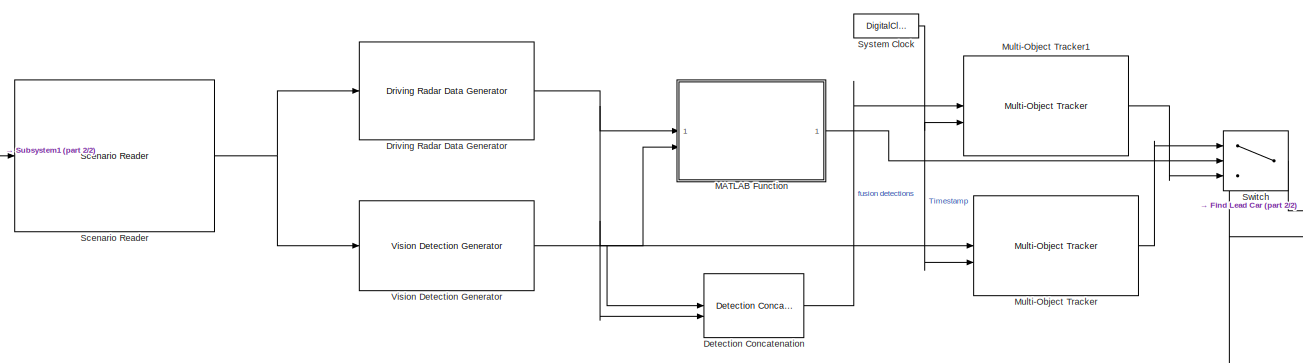
[diagram: root canvas - part 1/2, central region]
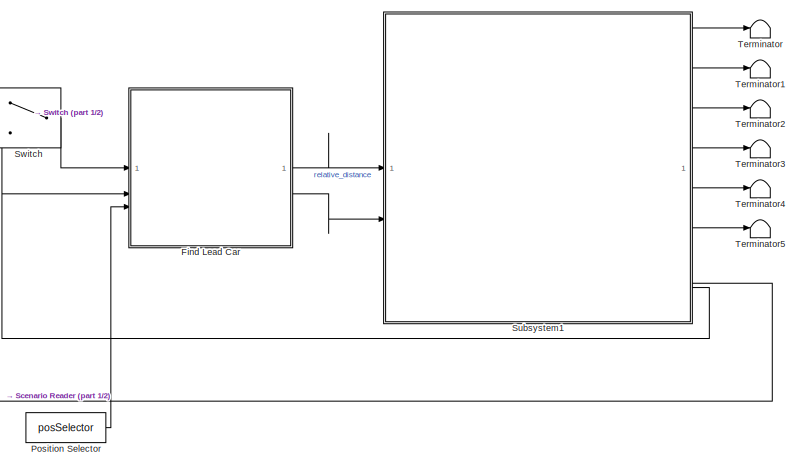
[diagram: root canvas - part 2/2, right side, full height]
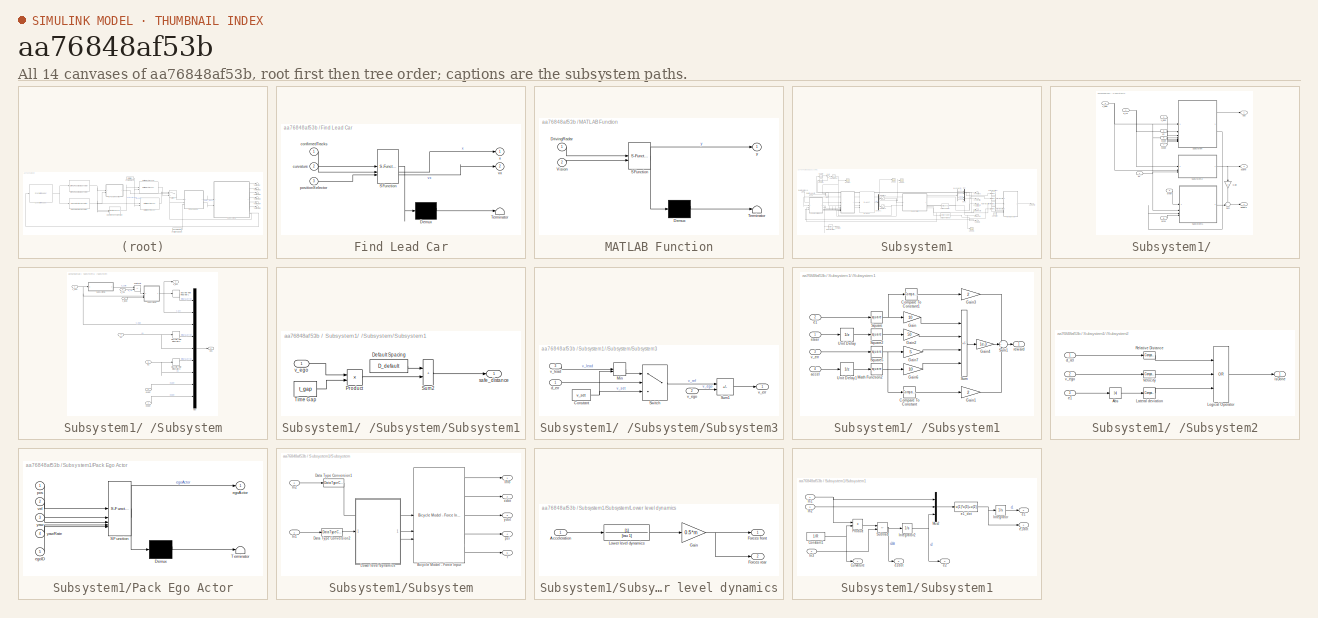
[diagram: thumbnail index - all 14 canvases of the model, root first then tree order]
MODEL slx_aa76848af53b
KIND model
CONFIG AbsTol = auto
CONFIG EnableMultiTasking = off
CONFIG FixedStep = 0.1
CONFIG MaxStep = auto
CONFIG MinStep = auto
CONFIG PostLoadFcn = RL_fault_tolerance_Setup
CONFIG RelTol = 1e-3
CONFIG SampleTimeConstraint = Unconstrained
CONFIG SolverName = FixedStepAuto
CONFIG StartTime = 0.0
CONFIG StopTime = 500
BLOCK [Reference] Detection Concatenation  REF=trackingutilitieslib/Detection Concatenation
  SourceBlock = trackingutilitieslib/Detection Concatenation
  SourceType = matlabshared.tracking.internal.DetectionConcatenation
BLOCK [Reference] Driving Radar Data Generator  REF=drivingscenarioandsensors/Driving Radar Data Generator
  SourceBlock = drivingscenarioandsensors/Driving Radar Data Generator
  SourceType = drivingRadarDataGenerator
BLOCK [SubSystem] Find Lead Car
  ErrorFcn = Stateflow.Translate.translate
  PermitHierarchicalResolution = ExplicitOnly
  SFBlockType = MATLAB Function
  TreatAsAtomicUnit = on
BLOCK [Demux] Find Lead Car/ Demux 
  Outputs = 1
BLOCK [S-Function] Find Lead Car/ SFunction 
  EnableBusSupport = on
  FunctionName = sf_sfun
  PortCounts = [3 3]
  SFcnIsStateOwnerBlock = off
  SFunctionDeploymentMode = off
  Tag = Stateflow S-Function 3
BLOCK [Terminator] Find Lead Car/ Terminator 
BLOCK [Inport] Find Lead Car/confirmedTracks
BLOCK [Inport] Find Lead Car/curvature
  Port = 2
BLOCK [Inport] Find Lead Car/positionSelector
  Port = 3
BLOCK [Outport] Find Lead Car/vx
  Port = 2
  VectorParamsAs1DForOutWhenUnconnected = off
BLOCK [Outport] Find Lead Car/x
  VectorParamsAs1DForOutWhenUnconnected = off
BLOCK [SubSystem] MATLAB Function
  ErrorFcn = Stateflow.Translate.translate
  PermitHierarchicalResolution = ExplicitOnly
  SFBlockType = MATLAB Function
  TreatAsAtomicUnit = on
BLOCK [Demux] MATLAB Function/ Demux 
  Outputs = 1
BLOCK [S-Function] MATLAB Function/ SFunction 
  EnableBusSupport = on
  FunctionName = sf_sfun
  PortCounts = [2 2]
  SFcnIsStateOwnerBlock = off
  SFunctionDeploymentMode = off
  Tag = Stateflow S-Function 2
BLOCK [Terminator] MATLAB Function/ Terminator 
BLOCK [Inport] MATLAB Function/DrivingRadar
BLOCK [Inport] MATLAB Function/Vision
  Port = 2
BLOCK [Outport] MATLAB Function/y
BLOCK [Reference] Multi-Object Tracker  REF=drivinglib/Multi-Object Tracker
  SourceBlock = drivinglib/Multi-Object Tracker
  SourceType = multiObjectTracker
BLOCK [Reference] Multi-Object Tracker1  REF=drivinglib/Multi-Object Tracker
  SourceBlock = drivinglib/Multi-Object Tracker
  SourceType = multiObjectTracker
BLOCK [Constant] Position Selector
  Value = posSelector
BLOCK [Reference] Scenario Reader  REF=drivingscenarioandsensors/Scenario Reader
  SourceBlock = drivingscenarioandsensors/Scenario Reader
  SourceType = driving.scenario.internal.ScenarioReader
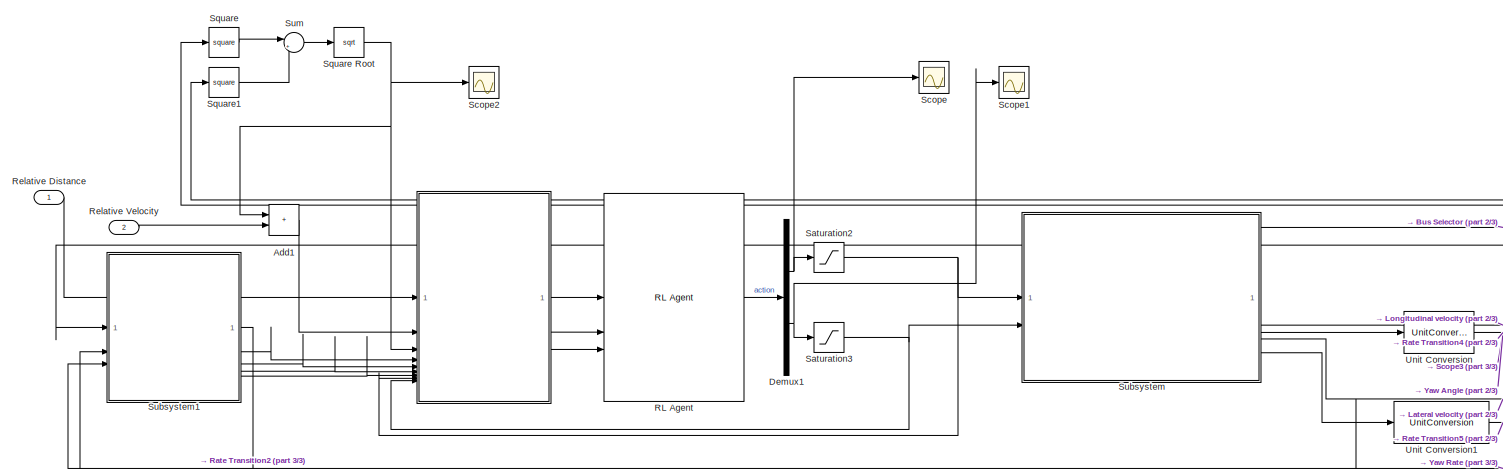
[diagram: Subsystem1 - part 1/3, middle left region]
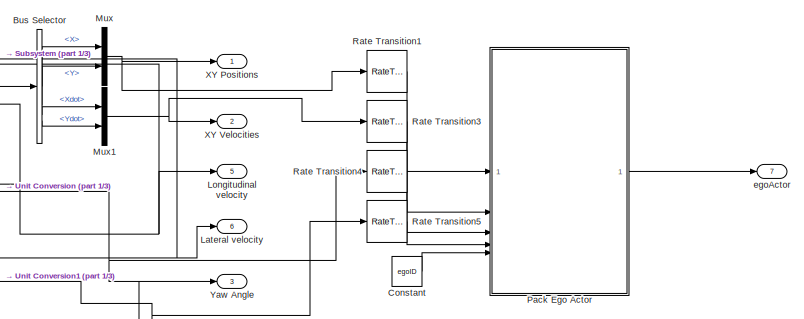
[diagram: Subsystem1 - part 2/3, middle right region]
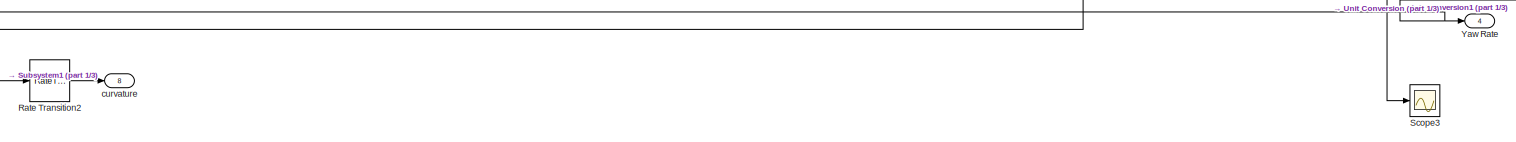
[diagram: Subsystem1 - part 3/3, bottom center region]
BLOCK [SubSystem] Subsystem1
BLOCK [SubSystem] Subsystem1/ 
BLOCK [Gain] Subsystem1/ /Gain
  Gain = 3
  NameLocation = left
BLOCK [Outport] Subsystem1/ /Reward
  Port = 2
  VectorParamsAs1DForOutWhenUnconnected = off
BLOCK [SubSystem] Subsystem1/ /Subsystem
BLOCK [DiscreteIntegrator] Subsystem1/ /Subsystem/Discrete-Time Integrator1
  ICPrevOutput = DiscIntNeverNeededParam
  ICPrevScaledInput = DiscIntNeverNeededParam
  InitialConditionSetting = Auto
  SampleTime = -1
BLOCK [DiscreteIntegrator] Subsystem1/ /Subsystem/Discrete-Time Integrator2
  ICPrevOutput = DiscIntNeverNeededParam
  ICPrevScaledInput = DiscIntNeverNeededParam
  InitialConditionSetting = Auto
  SampleTime = -1
BLOCK [DiscreteIntegrator] Subsystem1/ /Subsystem/Discrete-Time Integrator3
  ICPrevOutput = DiscIntNeverNeededParam
  ICPrevScaledInput = DiscIntNeverNeededParam
  InitialConditionSetting = Auto
  SampleTime = -1
BLOCK [Mux] Subsystem1/ /Subsystem/Mux
  DisplayOption = bar
  Inputs = 9
BLOCK [SubSystem] Subsystem1/ /Subsystem/Subsystem1
BLOCK [Constant] Subsystem1/ /Subsystem/Subsystem1/Default Spacing
  SampleTime = Ts
  Value = D_default
BLOCK [Product] Subsystem1/ /Subsystem/Subsystem1/Product
BLOCK [Sum] Subsystem1/ /Subsystem/Subsystem1/Sum2
  IconShape = rectangular
BLOCK [Constant] Subsystem1/ /Subsystem/Subsystem1/Time Gap
  SampleTime = Ts
  Value = t_gap
BLOCK [Outport] Subsystem1/ /Subsystem/Subsystem1/safe_distance
  VectorParamsAs1DForOutWhenUnconnected = off
BLOCK [Inport] Subsystem1/ /Subsystem/Subsystem1/v_ego
BLOCK [SubSystem] Subsystem1/ /Subsystem/Subsystem3
BLOCK [Constant] Subsystem1/ /Subsystem/Subsystem3/Constant
  Value = v_set
BLOCK [MinMax] Subsystem1/ /Subsystem/Subsystem3/Min
  Inputs = 2
BLOCK [Sum] Subsystem1/ /Subsystem/Subsystem3/Sum1
  IconShape = rectangular
  Inputs = +-
BLOCK [Switch] Subsystem1/ /Subsystem/Subsystem3/Switch
  Criteria = u2 > Threshold
  InputSameDT = off
  SaturateOnIntegerOverflow = off
BLOCK [Inport] Subsystem1/ /Subsystem/Subsystem3/d_err
BLOCK [Inport] Subsystem1/ /Subsystem/Subsystem3/v_ego
  Port = 2
BLOCK [Outport] Subsystem1/ /Subsystem/Subsystem3/v_err
  VectorParamsAs1DForOutWhenUnconnected = off
BLOCK [Inport] Subsystem1/ /Subsystem/Subsystem3/v_lead
  Port = 3
BLOCK [Sum] Subsystem1/ /Subsystem/Subtract2
  IconShape = rectangular
  Inputs = +-
BLOCK [Inport] Subsystem1/ /Subsystem/d_rel
  Port = 2
BLOCK [Inport] Subsystem1/ /Subsystem/e1
  Port = 4
BLOCK [Inport] Subsystem1/ /Subsystem/e1dot
  Port = 6
BLOCK [Inport] Subsystem1/ /Subsystem/e2
  Port = 5
BLOCK [Inport] Subsystem1/ /Subsystem/e2dot
  Port = 7
BLOCK [Outport] Subsystem1/ /Subsystem/obs
  VectorParamsAs1DForOutWhenUnconnected = off
BLOCK [Inport] Subsystem1/ /Subsystem/v_ego
BLOCK [Outport] Subsystem1/ /Subsystem/v_err
  Port = 2
  VectorParamsAs1DForOutWhenUnconnected = off
BLOCK [Inport] Subsystem1/ /Subsystem/v_lead
  Port = 3
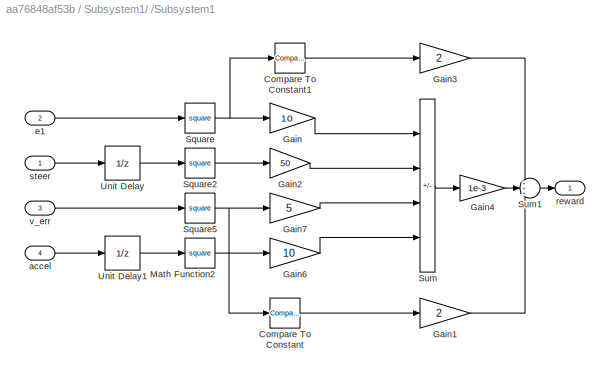
BLOCK [SubSystem] Subsystem1/ /Subsystem1
BLOCK [Reference] Subsystem1/ /Subsystem1/Compare To Constant  REF=simulink/Logic and Bit
Operations/Compare
To Constant
  SourceBlock = simulink/Logic and Bit\nOperations/Compare\nTo Constant
  SourceType = Compare To Constant
BLOCK [Reference] Subsystem1/ /Subsystem1/Compare To Constant1  REF=simulink/Logic and Bit
Operations/Compare
To Constant
  SourceBlock = simulink/Logic and Bit\nOperations/Compare\nTo Constant
  SourceType = Compare To Constant
BLOCK [Gain] Subsystem1/ /Subsystem1/Gain
  Gain = 10
BLOCK [Gain] Subsystem1/ /Subsystem1/Gain1
  Gain = 2
BLOCK [Gain] Subsystem1/ /Subsystem1/Gain2
  Gain = 50
BLOCK [Gain] Subsystem1/ /Subsystem1/Gain3
  Gain = 2
BLOCK [Gain] Subsystem1/ /Subsystem1/Gain4
  Gain = 1e-3
BLOCK [Gain] Subsystem1/ /Subsystem1/Gain6
  Gain = 10
BLOCK [Gain] Subsystem1/ /Subsystem1/Gain7
  Gain = 5
BLOCK [Math] Subsystem1/ /Subsystem1/Math Function2
  Operator = square
  SignedPower = on
BLOCK [Math] Subsystem1/ /Subsystem1/Square
  Operator = square
  SignedPower = on
BLOCK [Math] Subsystem1/ /Subsystem1/Square2
  Operator = square
  SignedPower = on
BLOCK [Math] Subsystem1/ /Subsystem1/Square5
  Operator = square
  SignedPower = on
BLOCK [Sum] Subsystem1/ /Subsystem1/Sum
  IconShape = rectangular
  Inputs = ----
BLOCK [Sum] Subsystem1/ /Subsystem1/Sum1
  Inputs = +++
BLOCK [UnitDelay] Subsystem1/ /Subsystem1/Unit Delay
  HasFrameUpgradeWarning = on
  SampleTime = -1
BLOCK [UnitDelay] Subsystem1/ /Subsystem1/Unit Delay1
  HasFrameUpgradeWarning = on
  SampleTime = -1
BLOCK [Inport] Subsystem1/ /Subsystem1/accel
  Port = 4
BLOCK [Inport] Subsystem1/ /Subsystem1/e1
  Port = 2
BLOCK [Outport] Subsystem1/ /Subsystem1/reward
  VectorParamsAs1DForOutWhenUnconnected = off
BLOCK [Inport] Subsystem1/ /Subsystem1/steer
BLOCK [Inport] Subsystem1/ /Subsystem1/v_err
  Port = 3
BLOCK [SubSystem] Subsystem1/ /Subsystem2
BLOCK [Abs] Subsystem1/ /Subsystem2/Abs
  Commented = on
  SaturateOnIntegerOverflow = off
BLOCK [Reference] Subsystem1/ /Subsystem2/Lateral deviation  REF=simulink/Logic and Bit
Operations/Compare
To Constant
  Commented = on
  SourceBlock = simulink/Logic and Bit\nOperations/Compare\nTo Constant
  SourceType = Compare To Constant
BLOCK [Logic] Subsystem1/ /Subsystem2/Logical Operator
  AllPortsSameDT = off
  Inputs = 3
  Operator = OR
  OutDataTypeStr = boolean
BLOCK [Reference] Subsystem1/ /Subsystem2/Relative Distance  REF=simulink/Logic and Bit
Operations/Compare
To Constant
  SourceBlock = simulink/Logic and Bit\nOperations/Compare\nTo Constant
  SourceType = Compare To Constant
BLOCK [Reference] Subsystem1/ /Subsystem2/Velocity  REF=simulink/Logic and Bit
Operations/Compare
To Constant
  Commented = on
  SourceBlock = simulink/Logic and Bit\nOperations/Compare\nTo Constant
  SourceType = Compare To Constant
BLOCK [Inport] Subsystem1/ /Subsystem2/d_rel
BLOCK [Inport] Subsystem1/ /Subsystem2/e1
  Port = 3
BLOCK [Outport] Subsystem1/ /Subsystem2/isDone
  VectorParamsAs1DForOutWhenUnconnected = off
BLOCK [Inport] Subsystem1/ /Subsystem2/v_ego
  Port = 2
BLOCK [Sum] Subsystem1/ /Sum
  Inputs = -+|
BLOCK [Inport] Subsystem1/ /accel
  Port = 8
BLOCK [Inport] Subsystem1/ /d_rel
BLOCK [Inport] Subsystem1/ /e1
  Port = 4
BLOCK [Inport] Subsystem1/ /e1dot
  Port = 6
BLOCK [Inport] Subsystem1/ /e2
  Port = 5
BLOCK [Inport] Subsystem1/ /e2dot
  Port = 7
BLOCK [Outport] Subsystem1/ /isDone
  Port = 3
  VectorParamsAs1DForOutWhenUnconnected = off
BLOCK [Outport] Subsystem1/ /obs
  VectorParamsAs1DForOutWhenUnconnected = off
BLOCK [Inport] Subsystem1/ /steer
  Port = 9
BLOCK [Inport] Subsystem1/ /v_ego
  Port = 3
BLOCK [Inport] Subsystem1/ /v_lead
  Port = 2
BLOCK [Sum] Subsystem1/Add1
  IconShape = rectangular
BLOCK [BusSelector] Subsystem1/Bus Selector
  OutputSignals = InertFrm.FrntAxl.Disp.X,InertFrm.FrntAxl.Disp.Y,InertFrm.FrntAxl.Vel.Xdot,InertFrm.FrntAxl.Vel.Ydot
BLOCK [Constant] Subsystem1/Constant
  Value = egoID
BLOCK [Demux] Subsystem1/Demux1
  Outputs = 2
BLOCK [Outport] Subsystem1/Lateral velocity
  Port = 6
  VectorParamsAs1DForOutWhenUnconnected = off
BLOCK [Outport] Subsystem1/Longitudinal velocity
  Port = 5
  VectorParamsAs1DForOutWhenUnconnected = off
BLOCK [Mux] Subsystem1/Mux
  DisplayOption = bar
  Inputs = 2
BLOCK [Mux] Subsystem1/Mux1
  DisplayOption = bar
  Inputs = 2
BLOCK [SubSystem] Subsystem1/Pack Ego Actor
  ErrorFcn = Stateflow.Translate.translate
  PermitHierarchicalResolution = ExplicitOnly
  SFBlockType = MATLAB Function
  TreatAsAtomicUnit = on
BLOCK [Demux] Subsystem1/Pack Ego Actor/ Demux 
  Outputs = 1
BLOCK [S-Function] Subsystem1/Pack Ego Actor/ SFunction 
  EnableBusSupport = on
  FunctionName = sf_sfun
  PortCounts = [5 2]
  SFcnIsStateOwnerBlock = off
  SFunctionDeploymentMode = off
  Tag = Stateflow S-Function 6
BLOCK [Terminator] Subsystem1/Pack Ego Actor/ Terminator 
BLOCK [Outport] Subsystem1/Pack Ego Actor/egoActor
  VectorParamsAs1DForOutWhenUnconnected = off
BLOCK [Inport] Subsystem1/Pack Ego Actor/egoID
  Port = 5
BLOCK [Inport] Subsystem1/Pack Ego Actor/pos
BLOCK [Inport] Subsystem1/Pack Ego Actor/vel
  Port = 2
BLOCK [Inport] Subsystem1/Pack Ego Actor/yaw
  Port = 3
BLOCK [Inport] Subsystem1/Pack Ego Actor/yawRate
  Port = 4
BLOCK [Reference] Subsystem1/RL Agent  REF=rllib/RL Agent
  SourceBlock = rllib/RL Agent
  SourceType = RL Agent
BLOCK [RateTransition] Subsystem1/Rate Transition1
  OutPortSampleTime = Ts
BLOCK [RateTransition] Subsystem1/Rate Transition2
  OutPortSampleTime = Ts
BLOCK [RateTransition] Subsystem1/Rate Transition3
  OutPortSampleTime = Ts
BLOCK [RateTransition] Subsystem1/Rate Transition4
  OutPortSampleTime = Ts
BLOCK [RateTransition] Subsystem1/Rate Transition5
  OutPortSampleTime = Ts
BLOCK [Inport] Subsystem1/Relative Distance
BLOCK [Inport] Subsystem1/Relative Velocity
  Port = 2
BLOCK [Saturate] Subsystem1/Saturation2
  LowerLimit = -3
  UpperLimit = 2
BLOCK [Saturate] Subsystem1/Saturation3
  LowerLimit = -0.1
  UpperLimit = 0.1
BLOCK [Scope] Subsystem1/Scope
  Floating = off
  NumInputPorts = 1
  ScopeSpecificationString = Simulink.scopes.TimeScopeBlockCfg('CurrentConfiguration', extmgr.ConfigurationSet(extmgr.Configuration('Core','General UI',true),extmgr.Configuration('Core','Source UI',true),extmgr.Configuration('Sources','WiredSimulink',true),extmgr.Configuration('Visuals','Time Domain',true,'SerializedDisplays',{struct('MinYLimReal','-3.625','MaxYLimReal','2.625','YLabelReal','','MinYLimMag','0.00000','MaxYLimM...<+1541ch>
BLOCK [Scope] Subsystem1/Scope1
  Floating = off
  NumInputPorts = 1
  ScopeSpecificationString = Simulink.scopes.TimeScopeBlockCfg('CurrentConfiguration', extmgr.ConfigurationSet(extmgr.Configuration('Core','General UI',true),extmgr.Configuration('Core','Source UI',true),extmgr.Configuration('Sources','WiredSimulink',true,'DataLoggingVariableName','ScopeData1'),extmgr.Configuration('Visuals','Time Domain',true,'SerializedDisplays',{struct('MinYLimReal','-0.3094','MaxYLimReal','0.3451','YLabel...<+1574ch>
BLOCK [Scope] Subsystem1/Scope2
  Floating = off
  NumInputPorts = 1
  ScopeSpecificationString = Simulink.scopes.TimeScopeBlockCfg('CurrentConfiguration', extmgr.ConfigurationSet(extmgr.Configuration('Core','General UI',true),extmgr.Configuration('Core','Source UI',true),extmgr.Configuration('Sources','WiredSimulink',true,'DataLoggingVariableName','ScopeData2'),extmgr.Configuration('Visuals','Time Domain',true,'SerializedDisplays',{struct('MinYLimReal','-2.36384','MaxYLimReal','23.75354','YLa...<+1585ch>
BLOCK [Scope] Subsystem1/Scope3
  Floating = off
  NumInputPorts = 1
  ScopeSpecificationString = Simulink.scopes.TimeScopeBlockCfg('CurrentConfiguration', extmgr.ConfigurationSet(extmgr.Configuration('Core','General UI',true),extmgr.Configuration('Core','Source UI',true),extmgr.Configuration('Sources','WiredSimulink',true,'DataLoggingVariableName','ScopeData3'),extmgr.Configuration('Visuals','Time Domain',true,'SerializedDisplays',{struct('MinYLimReal','-20.94926','MaxYLimReal','29.08815','YL...<+1592ch>
BLOCK [Math] Subsystem1/Square
  Operator = square
BLOCK [Sqrt] Subsystem1/Square Root
BLOCK [Math] Subsystem1/Square1
  Operator = square
BLOCK [SubSystem] Subsystem1/Subsystem
BLOCK [Reference] Subsystem1/Subsystem/Bicycle Model - Force Input  REF=autolibshared/Bicycle Model - Force Input
  LibrarySourceBlock = drivingscenarioandsensors/Bicycle Model - Force Input
  SourceBlock = autolibshared/Bicycle Model - Force Input
  SourceType = Vehicle Body 3DOF Lateral
BLOCK [DataTypeConversion] Subsystem1/Subsystem/Data Type Conversion1
  RndMeth = Floor
  SaturateOnIntegerOverflow = off
BLOCK [DataTypeConversion] Subsystem1/Subsystem/Data Type Conversion2
  RndMeth = Floor
  SaturateOnIntegerOverflow = off
BLOCK [Inport] Subsystem1/Subsystem/In1
BLOCK [Inport] Subsystem1/Subsystem/In2
  Port = 2
BLOCK [Outport] Subsystem1/Subsystem/Info
BLOCK [SubSystem] Subsystem1/Subsystem/Lower level dynamics
BLOCK [Inport] Subsystem1/Subsystem/Lower level dynamics/Acceleration
BLOCK [Outport] Subsystem1/Subsystem/Lower level dynamics/Forces front
  VectorParamsAs1DForOutWhenUnconnected = off
BLOCK [Outport] Subsystem1/Subsystem/Lower level dynamics/Forces rear
  Port = 2
  VectorParamsAs1DForOutWhenUnconnected = off
BLOCK [Gain] Subsystem1/Subsystem/Lower level dynamics/Gain
  Gain = 0.5*m
BLOCK [TransferFcn] Subsystem1/Subsystem/Lower level dynamics/Lower level dynamics
  Denominator = [tau 1]
BLOCK [Outport] Subsystem1/Subsystem/psi
  Port = 4
BLOCK [Outport] Subsystem1/Subsystem/r
  Port = 5
BLOCK [Outport] Subsystem1/Subsystem/xdot
  Port = 2
BLOCK [Outport] Subsystem1/Subsystem/ydot
  Port = 3
BLOCK [SubSystem] Subsystem1/Subsystem1
BLOCK [Constant] Subsystem1/Subsystem1/Constant1
  Value = 1/R
BLOCK [Outport] Subsystem1/Subsystem1/Curvature
BLOCK [Inport] Subsystem1/Subsystem1/In1
BLOCK [Inport] Subsystem1/Subsystem1/In2
  Port = 2
BLOCK [Inport] Subsystem1/Subsystem1/In3
  Port = 3
BLOCK [Integrator] Subsystem1/Subsystem1/Integrator
  InitialCondition = 0.2
BLOCK [Integrator] Subsystem1/Subsystem1/Integrator2
  InitialCondition = -0.1
BLOCK [Mux] Subsystem1/Subsystem1/Mux2
  DisplayOption = bar
  Inputs = [1 1 1]
BLOCK [Product] Subsystem1/Subsystem1/Product
BLOCK [Sum] Subsystem1/Subsystem1/Subtract
  IconShape = rectangular
  Inputs = -+
BLOCK [Outport] Subsystem1/Subsystem1/e1
  Port = 2
BLOCK [Fcn] Subsystem1/Subsystem1/e1_dot
  Expr = u(1)*u(3)+u(2)
BLOCK [Outport] Subsystem1/Subsystem1/e1dot
  Port = 4
BLOCK [Outport] Subsystem1/Subsystem1/e2
  Port = 3
BLOCK [Outport] Subsystem1/Subsystem1/e2dot
  Port = 5
BLOCK [Sum] Subsystem1/Sum
  Inputs = |++
BLOCK [UnitConversion] Subsystem1/Unit Conversion
BLOCK [UnitConversion] Subsystem1/Unit Conversion1
BLOCK [Outport] Subsystem1/XY Positions
  Unit = m
  VectorParamsAs1DForOutWhenUnconnected = off
BLOCK [Outport] Subsystem1/XY Velocities
  Port = 2
  Unit = m/s
  VectorParamsAs1DForOutWhenUnconnected = off
BLOCK [Outport] Subsystem1/Yaw Angle
  Port = 3
  Unit = deg
  VectorParamsAs1DForOutWhenUnconnected = off
BLOCK [Outport] Subsystem1/Yaw Rate
  Port = 4
  Unit = degree/s
  VectorParamsAs1DForOutWhenUnconnected = off
BLOCK [Outport] Subsystem1/curvature
  Port = 8
BLOCK [Outport] Subsystem1/egoActor
  Port = 7
BLOCK [Switch] Switch
  Criteria = u2 > Threshold
  InputSameDT = off
  SaturateOnIntegerOverflow = off
BLOCK [DigitalClock] System Clock
  SampleTime = Ts
BLOCK [Terminator] Terminator
BLOCK [Terminator] Terminator1
BLOCK [Terminator] Terminator2
BLOCK [Terminator] Terminator3
BLOCK [Terminator] Terminator4
BLOCK [Terminator] Terminator5
BLOCK [Reference] Vision Detection Generator  REF=drivingscenarioandsensors/Vision Detection Generator
  SourceBlock = drivingscenarioandsensors/Vision Detection Generator
  SourceType = visionDetectionGenerator
LINE Detection Concatenation:1 -> Multi-Object Tracker1:1
NET Driving Radar Data Generator:1 -> Detection Concatenation:2, MATLAB Function:1, Multi-Object Tracker:1
LINE Find Lead Car:1 -> Subsystem1:1
LINE Find Lead Car:2 -> Subsystem1:2
LINE MATLAB Function:1 -> Switch:2
LINE Multi-Object Tracker1:1 -> Switch:3
LINE Multi-Object Tracker:1 -> Switch:1
LINE Position Selector:1 -> Find Lead Car:3
NET Scenario Reader:1 -> Driving Radar Data Generator:1, Vision Detection Generator:1
LINE Subsystem1/ /Gain:1 -> Subsystem1/ /Sum:1
LINE Subsystem1/ /Subsystem/Discrete-Time Integrator1:1 -> Subsystem1/ /Subsystem/Mux:1
LINE Subsystem1/ /Subsystem/Discrete-Time Integrator2:1 -> Subsystem1/ /Subsystem/Mux:4
LINE Subsystem1/ /Subsystem/Discrete-Time Integrator3:1 -> Subsystem1/ /Subsystem/Mux:6
LINE Subsystem1/ /Subsystem/Mux:1 -> Subsystem1/ /Subsystem/obs:1
LINE Subsystem1/ /Subsystem/Subsystem1/Default Spacing:1 -> Subsystem1/ /Subsystem/Subsystem1/Sum2:1
LINE Subsystem1/ /Subsystem/Subsystem1/Product:1 -> Subsystem1/ /Subsystem/Subsystem1/Sum2:2
LINE Subsystem1/ /Subsystem/Subsystem1/Sum2:1 -> Subsystem1/ /Subsystem/Subsystem1/safe_distance:1
LINE Subsystem1/ /Subsystem/Subsystem1/Time Gap:1 -> Subsystem1/ /Subsystem/Subsystem1/Product:2
LINE Subsystem1/ /Subsystem/Subsystem1/v_ego:1 -> Subsystem1/ /Subsystem/Subsystem1/Product:1
LINE Subsystem1/ /Subsystem/Subsystem1:1 -> Subsystem1/ /Subsystem/Subtract2:1
NET Subsystem1/ /Subsystem/Subsystem3/Constant:1 -> Subsystem1/ /Subsystem/Subsystem3/Min:2, Subsystem1/ /Subsystem/Subsystem3/Switch:3
LINE Subsystem1/ /Subsystem/Subsystem3/Min:1 -> Subsystem1/ /Subsystem/Subsystem3/Switch:1
LINE Subsystem1/ /Subsystem/Subsystem3/Sum1:1 -> Subsystem1/ /Subsystem/Subsystem3/v_err:1
LINE Subsystem1/ /Subsystem/Subsystem3/Switch:1 -> Subsystem1/ /Subsystem/Subsystem3/Sum1:1
LINE Subsystem1/ /Subsystem/Subsystem3/d_err:1 -> Subsystem1/ /Subsystem/Subsystem3/Switch:2
LINE Subsystem1/ /Subsystem/Subsystem3/v_ego:1 -> Subsystem1/ /Subsystem/Subsystem3/Sum1:2
LINE Subsystem1/ /Subsystem/Subsystem3/v_lead:1 -> Subsystem1/ /Subsystem/Subsystem3/Min:1
NET Subsystem1/ /Subsystem/Subsystem3:1 -> Subsystem1/ /Subsystem/Discrete-Time Integrator1:1, Subsystem1/ /Subsystem/Mux:2, Subsystem1/ /Subsystem/v_err:1
LINE Subsystem1/ /Subsystem/Subtract2:1 -> Subsystem1/ /Subsystem/Subsystem3:1
LINE Subsystem1/ /Subsystem/d_rel:1 -> Subsystem1/ /Subsystem/Subtract2:2
NET Subsystem1/ /Subsystem/e1:1 -> Subsystem1/ /Subsystem/Discrete-Time Integrator2:1, Subsystem1/ /Subsystem/Mux:5
LINE Subsystem1/ /Subsystem/e1dot:1 -> Subsystem1/ /Subsystem/Mux:8
NET Subsystem1/ /Subsystem/e2:1 -> Subsystem1/ /Subsystem/Discrete-Time Integrator3:1, Subsystem1/ /Subsystem/Mux:7
LINE Subsystem1/ /Subsystem/e2dot:1 -> Subsystem1/ /Subsystem/Mux:9
NET Subsystem1/ /Subsystem/v_ego:1 -> Subsystem1/ /Subsystem/Mux:3, Subsystem1/ /Subsystem/Subsystem1:1, Subsystem1/ /Subsystem/Subsystem3:2
LINE Subsystem1/ /Subsystem/v_lead:1 -> Subsystem1/ /Subsystem/Subsystem3:3
LINE Subsystem1/ /Subsystem1/Compare To Constant1:1 -> Subsystem1/ /Subsystem1/Gain3:1
LINE Subsystem1/ /Subsystem1/Compare To Constant:1 -> Subsystem1/ /Subsystem1/Gain1:1
LINE Subsystem1/ /Subsystem1/Gain1:1 -> Subsystem1/ /Subsystem1/Sum1:3
LINE Subsystem1/ /Subsystem1/Gain2:1 -> Subsystem1/ /Subsystem1/Sum:2
LINE Subsystem1/ /Subsystem1/Gain3:1 -> Subsystem1/ /Subsystem1/Sum1:1
LINE Subsystem1/ /Subsystem1/Gain4:1 -> Subsystem1/ /Subsystem1/Sum1:2
LINE Subsystem1/ /Subsystem1/Gain6:1 -> Subsystem1/ /Subsystem1/Sum:4
LINE Subsystem1/ /Subsystem1/Gain7:1 -> Subsystem1/ /Subsystem1/Sum:3
LINE Subsystem1/ /Subsystem1/Gain:1 -> Subsystem1/ /Subsystem1/Sum:1
LINE Subsystem1/ /Subsystem1/Math Function2:1 -> Subsystem1/ /Subsystem1/Gain6:1
LINE Subsystem1/ /Subsystem1/Square2:1 -> Subsystem1/ /Subsystem1/Gain2:1
NET Subsystem1/ /Subsystem1/Square5:1 -> Subsystem1/ /Subsystem1/Compare To Constant:1, Subsystem1/ /Subsystem1/Gain7:1
NET Subsystem1/ /Subsystem1/Square:1 -> Subsystem1/ /Subsystem1/Compare To Constant1:1, Subsystem1/ /Subsystem1/Gain:1
LINE Subsystem1/ /Subsystem1/Sum1:1 -> Subsystem1/ /Subsystem1/reward:1
LINE Subsystem1/ /Subsystem1/Sum:1 -> Subsystem1/ /Subsystem1/Gain4:1
LINE Subsystem1/ /Subsystem1/Unit Delay1:1 -> Subsystem1/ /Subsystem1/Math Function2:1
LINE Subsystem1/ /Subsystem1/Unit Delay:1 -> Subsystem1/ /Subsystem1/Square2:1
LINE Subsystem1/ /Subsystem1/accel:1 -> Subsystem1/ /Subsystem1/Unit Delay1:1
LINE Subsystem1/ /Subsystem1/e1:1 -> Subsystem1/ /Subsystem1/Square:1
LINE Subsystem1/ /Subsystem1/steer:1 -> Subsystem1/ /Subsystem1/Unit Delay:1
LINE Subsystem1/ /Subsystem1/v_err:1 -> Subsystem1/ /Subsystem1/Square5:1
LINE Subsystem1/ /Subsystem1:1 -> Subsystem1/ /Sum:2
LINE Subsystem1/ /Subsystem2/Abs:1 -> Subsystem1/ /Subsystem2/Lateral deviation:1
LINE Subsystem1/ /Subsystem2/Lateral deviation:1 -> Subsystem1/ /Subsystem2/Logical Operator:3
LINE Subsystem1/ /Subsystem2/Logical Operator:1 -> Subsystem1/ /Subsystem2/isDone:1
LINE Subsystem1/ /Subsystem2/Relative Distance:1 -> Subsystem1/ /Subsystem2/Logical Operator:1
LINE Subsystem1/ /Subsystem2/Velocity:1 -> Subsystem1/ /Subsystem2/Logical Operator:2
LINE Subsystem1/ /Subsystem2/d_rel:1 -> Subsystem1/ /Subsystem2/Relative Distance:1
LINE Subsystem1/ /Subsystem2/e1:1 -> Subsystem1/ /Subsystem2/Abs:1
LINE Subsystem1/ /Subsystem2/v_ego:1 -> Subsystem1/ /Subsystem2/Velocity:1
NET Subsystem1/ /Subsystem2:1 -> Subsystem1/ /Gain:1, Subsystem1/ /isDone:1
LINE Subsystem1/ /Subsystem:1 -> Subsystem1/ /obs:1
LINE Subsystem1/ /Subsystem:2 -> Subsystem1/ /Subsystem1:3
LINE Subsystem1/ /Sum:1 -> Subsystem1/ /Reward:1
LINE Subsystem1/ /accel:1 -> Subsystem1/ /Subsystem1:4
NET Subsystem1/ /d_rel:1 -> Subsystem1/ /Subsystem2:1, Subsystem1/ /Subsystem:2
NET Subsystem1/ /e1:1 -> Subsystem1/ /Subsystem1:2, Subsystem1/ /Subsystem2:3, Subsystem1/ /Subsystem:4
LINE Subsystem1/ /e1dot:1 -> Subsystem1/ /Subsystem:6
LINE Subsystem1/ /e2:1 -> Subsystem1/ /Subsystem:5
LINE Subsystem1/ /e2dot:1 -> Subsystem1/ /Subsystem:7
LINE Subsystem1/ /steer:1 -> Subsystem1/ /Subsystem1:1
NET Subsystem1/ /v_ego:1 -> Subsystem1/ /Subsystem2:2, Subsystem1/ /Subsystem:1
LINE Subsystem1/ /v_lead:1 -> Subsystem1/ /Subsystem:3
LINE Subsystem1/ :1 -> Subsystem1/RL Agent:1
LINE Subsystem1/ :2 -> Subsystem1/RL Agent:2
LINE Subsystem1/ :3 -> Subsystem1/RL Agent:3
LINE Subsystem1/Add1:1 -> Subsystem1/ :2
LINE Subsystem1/Bus Selector:1 -> Subsystem1/Mux:1
LINE Subsystem1/Bus Selector:2 -> Subsystem1/Mux:2
LINE Subsystem1/Bus Selector:3 -> Subsystem1/Mux1:1
LINE Subsystem1/Bus Selector:4 -> Subsystem1/Mux1:2
LINE Subsystem1/Constant:1 -> Subsystem1/Pack Ego Actor:5
NET Subsystem1/Demux1:1 -> Subsystem1/Saturation2:1, Subsystem1/Scope:1
NET Subsystem1/Demux1:2 -> Subsystem1/Saturation3:1, Subsystem1/Scope1:1
NET Subsystem1/Mux1:1 -> Subsystem1/Rate Transition3:1, Subsystem1/XY Velocities:1
NET Subsystem1/Mux:1 -> Subsystem1/Rate Transition1:1, Subsystem1/XY Positions:1
LINE Subsystem1/Pack Ego Actor:1 -> Subsystem1/egoActor:1
LINE Subsystem1/RL Agent:1 -> Subsystem1/Demux1:1
LINE Subsystem1/Rate Transition1:1 -> Subsystem1/Pack Ego Actor:1
LINE Subsystem1/Rate Transition2:1 -> Subsystem1/curvature:1
LINE Subsystem1/Rate Transition3:1 -> Subsystem1/Pack Ego Actor:2
LINE Subsystem1/Rate Transition4:1 -> Subsystem1/Pack Ego Actor:3
LINE Subsystem1/Rate Transition5:1 -> Subsystem1/Pack Ego Actor:4
LINE Subsystem1/Relative Distance:1 -> Subsystem1/ :1
LINE Subsystem1/Relative Velocity:1 -> Subsystem1/Add1:2
NET Subsystem1/Saturation2:1 -> Subsystem1/ :8, Subsystem1/Subsystem:1
NET Subsystem1/Saturation3:1 -> Subsystem1/ :9, Subsystem1/Subsystem:2
NET Subsystem1/Square Root:1 -> Subsystem1/ :3, Subsystem1/Add1:1, Subsystem1/Scope2:1
LINE Subsystem1/Square1:1 -> Subsystem1/Sum:2
LINE Subsystem1/Square:1 -> Subsystem1/Sum:1
LINE Subsystem1/Subsystem/Bicycle Model - Force Input:1 -> Subsystem1/Subsystem/Info:1
LINE Subsystem1/Subsystem/Bicycle Model - Force Input:2 -> Subsystem1/Subsystem/xdot:1
LINE Subsystem1/Subsystem/Bicycle Model - Force Input:3 -> Subsystem1/Subsystem/ydot:1
LINE Subsystem1/Subsystem/Bicycle Model - Force Input:4 -> Subsystem1/Subsystem/psi:1
LINE Subsystem1/Subsystem/Bicycle Model - Force Input:5 -> Subsystem1/Subsystem/r:1
LINE Subsystem1/Subsystem/Data Type Conversion1:1 -> Subsystem1/Subsystem/Bicycle Model - Force Input:1
LINE Subsystem1/Subsystem/Data Type Conversion2:1 -> Subsystem1/Subsystem/Lower level dynamics:1
LINE Subsystem1/Subsystem/In1:1 -> Subsystem1/Subsystem/Data Type Conversion2:1
LINE Subsystem1/Subsystem/In2:1 -> Subsystem1/Subsystem/Data Type Conversion1:1
LINE Subsystem1/Subsystem/Lower level dynamics/Acceleration:1 -> Subsystem1/Subsystem/Lower level dynamics/Lower level dynamics:1
NET Subsystem1/Subsystem/Lower level dynamics/Gain:1 -> Subsystem1/Subsystem/Lower level dynamics/Forces front:1, Subsystem1/Subsystem/Lower level dynamics/Forces rear:1
LINE Subsystem1/Subsystem/Lower level dynamics/Lower level dynamics:1 -> Subsystem1/Subsystem/Lower level dynamics/Gain:1
LINE Subsystem1/Subsystem/Lower level dynamics:1 -> Subsystem1/Subsystem/Bicycle Model - Force Input:2
LINE Subsystem1/Subsystem/Lower level dynamics:2 -> Subsystem1/Subsystem/Bicycle Model - Force Input:3
NET Subsystem1/Subsystem1/Constant1:1 -> Subsystem1/Subsystem1/Curvature:1, Subsystem1/Subsystem1/Product:2
NET Subsystem1/Subsystem1/In1:1 -> Subsystem1/Subsystem1/Mux2:1, Subsystem1/Subsystem1/Product:1
LINE Subsystem1/Subsystem1/In2:1 -> Subsystem1/Subsystem1/Mux2:2
LINE Subsystem1/Subsystem1/In3:1 -> Subsystem1/Subsystem1/Subtract:2
NET Subsystem1/Subsystem1/Integrator2:1 -> Subsystem1/Subsystem1/Mux2:3, Subsystem1/Subsystem1/e2:1
LINE Subsystem1/Subsystem1/Integrator:1 -> Subsystem1/Subsystem1/e1:1
LINE Subsystem1/Subsystem1/Mux2:1 -> Subsystem1/Subsystem1/e1_dot:1
LINE Subsystem1/Subsystem1/Product:1 -> Subsystem1/Subsystem1/Subtract:1
NET Subsystem1/Subsystem1/Subtract:1 -> Subsystem1/Subsystem1/Integrator2:1, Subsystem1/Subsystem1/e2dot:1
NET Subsystem1/Subsystem1/e1_dot:1 -> Subsystem1/Subsystem1/Integrator:1, Subsystem1/Subsystem1/e1dot:1
LINE Subsystem1/Subsystem1:1 -> Subsystem1/Rate Transition2:1
LINE Subsystem1/Subsystem1:2 -> Subsystem1/ :4
LINE Subsystem1/Subsystem1:3 -> Subsystem1/ :5
LINE Subsystem1/Subsystem1:4 -> Subsystem1/ :6
LINE Subsystem1/Subsystem1:5 -> Subsystem1/ :7
LINE Subsystem1/Subsystem:1 -> Subsystem1/Bus Selector:1
NET Subsystem1/Subsystem:2 -> Subsystem1/Longitudinal velocity:1, Subsystem1/Square:1, Subsystem1/Subsystem1:1
NET Subsystem1/Subsystem:3 -> Subsystem1/Lateral velocity:1, Subsystem1/Square1:1, Subsystem1/Subsystem1:2
LINE Subsystem1/Subsystem:4 -> Subsystem1/Unit Conversion:1
LINE Subsystem1/Subsystem:5 -> Subsystem1/Unit Conversion1:1
LINE Subsystem1/Sum:1 -> Subsystem1/Square Root:1
NET Subsystem1/Unit Conversion1:1 -> Subsystem1/Rate Transition5:1, Subsystem1/Subsystem1:3, Subsystem1/Yaw Rate:1
NET Subsystem1/Unit Conversion:1 -> Subsystem1/Rate Transition4:1, Subsystem1/Scope3:1, Subsystem1/Yaw Angle:1
LINE Subsystem1:1 -> Terminator:1
LINE Subsystem1:2 -> Terminator1:1
LINE Subsystem1:3 -> Terminator2:1
LINE Subsystem1:4 -> Terminator3:1
LINE Subsystem1:5 -> Terminator4:1
LINE Subsystem1:6 -> Terminator5:1
LINE Subsystem1:7 -> Scenario Reader:1
LINE Subsystem1:8 -> Find Lead Car:2
LINE Switch:1 -> Find Lead Car:1
NET System Clock:1 -> Multi-Object Tracker1:2, Multi-Object Tracker:2
NET Vision Detection Generator:1 -> Detection Concatenation:1, MATLAB Function:2
note: NET lines group one-source signal fan-out (src -> all destinations, sorted); 1:1 wires keep LINE
CHART MATLAB Function states=1 transitions=1
  STATE_LABEL 'eML_blk_kernel()'
  STATE_LABEL 'SCRIPT:\nfunction y = compareNumDetections(DrivingRadar, Vision) \nradarCnt  = double(DrivingRadar.NumDetections);\nvisionCnt = double(Vision.NumDetections);\n\nif radarCnt > visionCnt\n    y = uint8(1);\nelse\n    y = uint8(0);\nend\nend\n\n\n\n'
CHART Find Lead Car states=1 transitions=1
  STATE_LABEL 'eML_blk_kernel()'
  STATE_LABEL "SCRIPT:\nfunction [x,vx] = findLeadCar(confirmedTracks, curvature, positionSelector)\n\nnumStates = 6;\nlaneWidth = 3.6;\nhalfLaneWidth = laneWidth/2;\nmaxX = cast(1000, 'like', confirmedTracks.Tracks(1).State);\ntrackID = 0;\nfor i = 1:confirmedTracks.NumTracks\n    position = positionSelector * confirmedTracks.Tracks(i).State;\n    x = position(1);\n    y = position(2);\n\n    if x < maxX && x > 0\n        yl...<+427ch>"
CHART Subsystem1/Pack Ego Actor states=1 transitions=1
  STATE_LABEL 'eML_blk_kernel()'
  STATE_LABEL "SCRIPT:\nfunction egoActor  = packEgo(pos,vel,yaw,yawRate,egoID)\n\negoActor = struct(...\n    'ActorID',egoID,...\n    'Position', [pos(1) pos(2) 0], ...\n    'Velocity', [vel(1) vel(2) 0], ...\n    'Roll', 0, ...\n    'Pitch', 0, ...\n    'Yaw', yaw, ...\n    'AngularVelocity', [0 0 yawRate]);"
CHART  states=0 transitions=0
CHART  states=0 transitions=0
CHART  states=0 transitions=0
